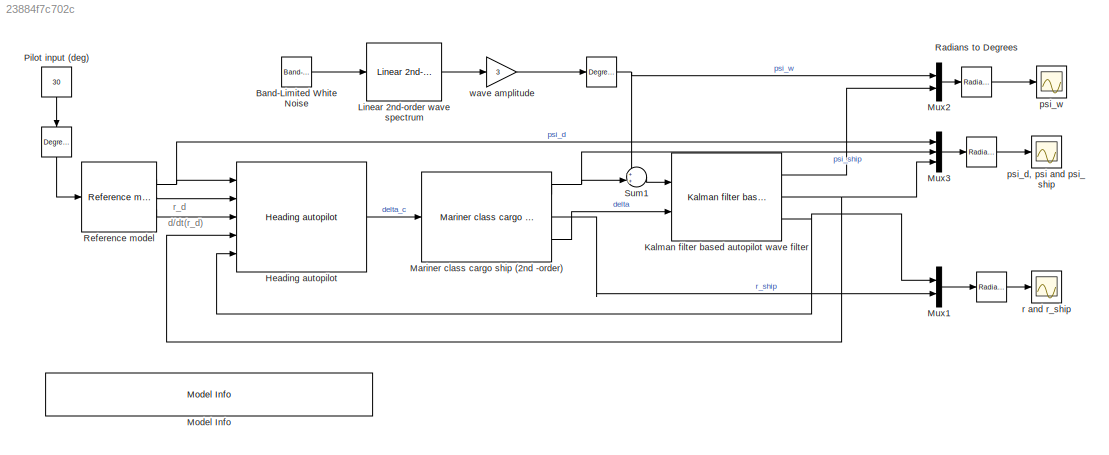
MODEL slx_23884f7c702c
KIND model
CONFIG AbsTol = auto
CONFIG EnableMultiTasking = on
CONFIG FixedStep = 0.1
CONFIG MaxStep = auto
CONFIG MinStep = auto
CONFIG RelTol = 1e-3
CONFIG SampleTimeConstraint = Unconstrained
CONFIG SolverName = ode4
CONFIG StartTime = 0.0
CONFIG StopTime = 200
BLOCK [Reference]    REF=simulink_extras/Transformations/Radians
to Degrees
  Ports = [1, 1]
  SourceBlock = simulink_extras/Transformations/Radians\nto Degrees
  SourceProductBaseCode = SL
  SourceType = RadiansToDegrees
BLOCK [Reference]     REF=simulink_extras/Transformations/Radians
to Degrees
  Ports = [1, 1]
  SourceBlock = simulink_extras/Transformations/Radians\nto Degrees
  SourceProductBaseCode = SL
  SourceType = RadiansToDegrees
BLOCK [Reference]      REF=simulink_extras/Transformations/Degrees to
Radians
  Ports = [1, 1]
  SourceBlock = simulink_extras/Transformations/Degrees to\nRadians
  SourceProductBaseCode = SL
  SourceType = DegreesToRadians
BLOCK [Reference]        REF=simulink_extras/Transformations/Degrees to
Radians
  NameLocation = left
  Ports = [1, 1]
  SourceBlock = simulink_extras/Transformations/Degrees to\nRadians
  SourceProductBaseCode = SL
  SourceType = DegreesToRadians
BLOCK [Reference] Band-Limited White Noise  REF=simulink/Sources/Band-Limited
White Noise
  Ports = [0, 1]
  SourceBlock = simulink/Sources/Band-Limited\nWhite Noise
  SourceProductBaseCode = SL
  SourceType = Band-Limited White Noise.
BLOCK [Reference] Heading autopilot   REF=mssSimulink/Control/Autopilots/Heading autopilot
  Ports = [5, 1]
  SourceBlock = mssSimulink/Control/Autopilots/Heading autopilot
  SourceType = Course Autopilot
BLOCK [Reference] Kalman filter based autopilot wave filter   REF=mssSimulink/Navigation/Estimators/Kalman filter based
autopilot wave filter
  Ports = [2, 3]
  SourceBlock = mssSimulink/Navigation/Estimators/Kalman filter based\nautopilot wave filter
BLOCK [Reference] Linear 2nd-order wave spectrum   REF=mssSimulink/Environment/Waves/Linear 2nd-order 
wave spectrum
  Ports = [1, 1]
  SourceBlock = mssSimulink/Environment/Waves/Linear 2nd-order \nwave spectrum
BLOCK [Reference] Mariner class cargo ship (2nd -order)   REF=mssSimulink/Marine craft models/Mariner class cargo ship
 (2nd -order)
  Ports = [1, 3]
  SourceBlock = mssSimulink/Marine craft models/Mariner class cargo ship\n (2nd -order)
  SourceType = Container ship (2nd-order model)
BLOCK [Reference] Model Info  REF=simulink/Model-Wide
Utilities/Model Info
  Ports = []
  SourceBlock = simulink/Model-Wide\nUtilities/Model Info
  SourceProductBaseCode = SL
  SourceType = CMBlock
BLOCK [Mux] Mux1
  DisplayOption = bar
  Inputs = 2
  Ports = [2, 1]
BLOCK [Mux] Mux2
  DisplayOption = bar
  Inputs = 2
  Ports = [2, 1]
BLOCK [Mux] Mux3
  DisplayOption = bar
  Inputs = 3
  Ports = [3, 1]
BLOCK [Constant] Pilot input (deg)
  NameLocation = right
  Value = 30
BLOCK [Reference] Radians to Degrees    REF=simulink_extras/Transformations/Radians
to Degrees
  NameLocation = top
  Ports = [1, 1]
  SourceBlock = simulink_extras/Transformations/Radians\nto Degrees
  SourceProductBaseCode = SL
  SourceType = RadiansToDegrees
BLOCK [Reference] Reference model   REF=mssSimulink/Guidance/Reference model
  Ports = [1, 3]
  SourceBlock = mssSimulink/Guidance/Reference model
  SourceType = 3rd-order reference model
BLOCK [Sum] Sum1
  InputSameDT = on
  Inputs = ++|
  OutDataTypeStr = Inherit: Same as first input
  Ports = [2, 1]
  SaturateOnIntegerOverflow = on
BLOCK [Scope] psi_d, psi and psi_ship
  Floating = off
  NumInputPorts = 1
  Ports = [1]
  ScopeSpecificationString = Simulink.scopes.TimeScopeBlockCfg('CurrentConfiguration', extmgr.ConfigurationSet(extmgr.Configuration('Core','General UI',true),extmgr.Configuration('Core','Source UI',true),extmgr.Configuration('Sources','WiredSimulink',true,'DataLoggingVariableName','ScopeData2','DataLoggingSaveFormat','StructureWithTime','DataLoggingDecimation','10','DataLoggingDecimateData',true,'DataLoggingLimitDataPoints',t...<+1712ch>
BLOCK [Scope] psi_w
  Floating = off
  NumInputPorts = 1
  Ports = [1]
  ScopeSpecificationString = Simulink.scopes.TimeScopeBlockCfg('CurrentConfiguration', extmgr.ConfigurationSet(extmgr.Configuration('Core','General UI',true),extmgr.Configuration('Core','Source UI',true),extmgr.Configuration('Sources','WiredSimulink',true,'DataLoggingSaveFormat','StructureWithTime','DataLoggingDecimation','10','DataLoggingDecimateData',true,'DataLoggingLimitDataPoints',true),extmgr.Configuration('Visuals','Ti...<+1736ch>
BLOCK [Scope] r and r_ship
  Floating = off
  NumInputPorts = 1
  Ports = [1]
  ScopeSpecificationString = Simulink.scopes.TimeScopeBlockCfg('CurrentConfiguration', extmgr.ConfigurationSet(extmgr.Configuration('Core','General UI',true),extmgr.Configuration('Core','Source UI',true),extmgr.Configuration('Sources','WiredSimulink',true,'DataLoggingVariableName','ScopeData3','DataLoggingSaveFormat','StructureWithTime','DataLoggingDecimation','10','DataLoggingDecimateData',true,'DataLoggingLimitDataPoints',t...<+1742ch>
BLOCK [Gain] wave amplitude
  Gain = 3
  NameLocation = top
  OutDataTypeStr = Inherit: Same as input
  ParamDataTypeStr = Inherit: Same as input
  SaturateOnIntegerOverflow = on
ANNOTATION (root): d/dt(r_d)
ANNOTATION (root): r_d
LINE      :1 -> Reference model :1
NET    :1 -> Mux2:1, Sum1:1
LINE   :1 -> r and r_ship:1
LINE  :1 -> psi_d, psi and psi_ship:1
LINE Band-Limited White Noise:1 -> Linear 2nd-order wave spectrum :1
LINE Heading autopilot :1 -> Mariner class cargo ship (2nd -order) :1
LINE Kalman filter based autopilot wave filter :1 -> Mux2:2
NET Kalman filter based autopilot wave filter :2 -> Heading autopilot :4, Mux3:3
NET Kalman filter based autopilot wave filter :3 -> Heading autopilot :5, Mux1:1
LINE Linear 2nd-order wave spectrum :1 -> wave amplitude:1
NET Mariner class cargo ship (2nd -order) :1 -> Mux3:2, Sum1:2
LINE Mariner class cargo ship (2nd -order) :2 -> Mux1:2
LINE Mariner class cargo ship (2nd -order) :3 -> Kalman filter based autopilot wave filter :2
LINE Mux1:1 ->   :1
LINE Mux2:1 -> Radians to Degrees  :1
LINE Mux3:1 ->  :1
LINE Pilot input (deg):1 ->      :1
LINE Radians to Degrees  :1 -> psi_w:1
NET Reference model :1 -> Heading autopilot :1, Mux3:1
LINE Reference model :2 -> Heading autopilot :2
LINE Reference model :3 -> Heading autopilot :3
LINE Sum1:1 -> Kalman filter based autopilot wave filter :1
LINE wave amplitude:1 ->    :1
note: NET lines group one-source signal fan-out (src -> all destinations, sorted); 1:1 wires keep LINE
